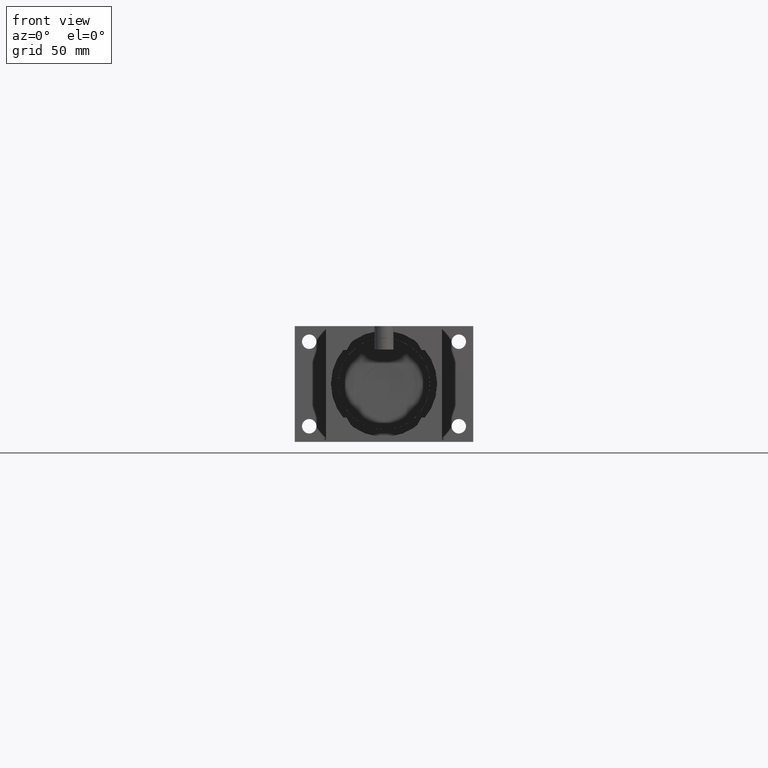
[diagram: clean part render]
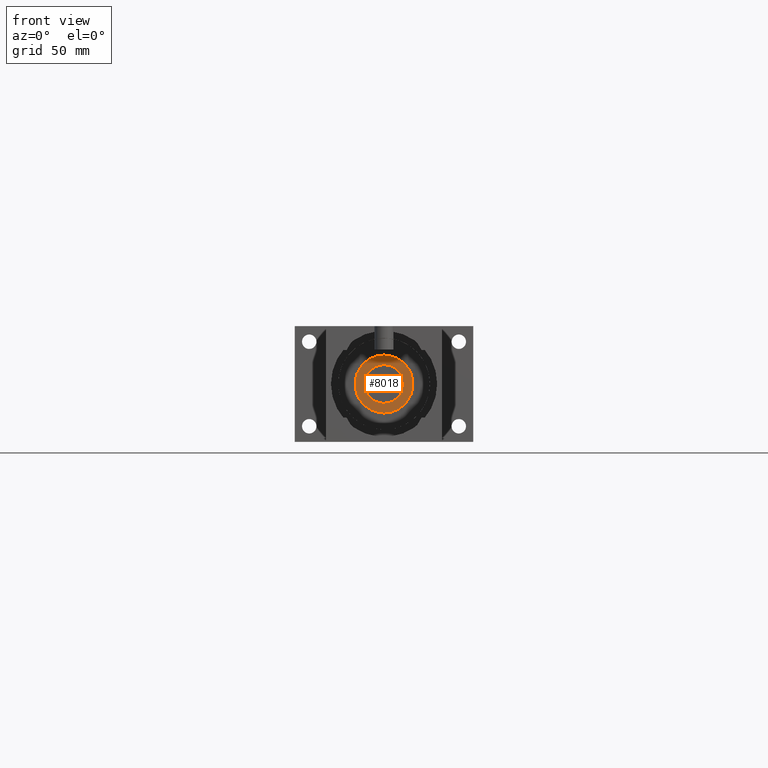
[diagram: same view with one face highlighted and labeled with its STEP entity id]
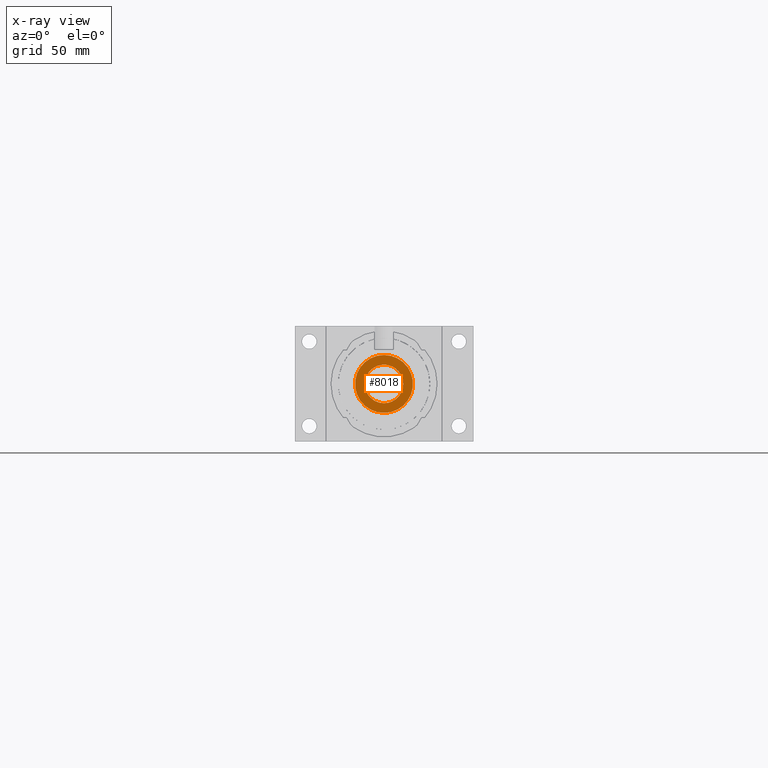
[diagram: x-ray of the same camera — body ghosted, the highlighted face saturated]
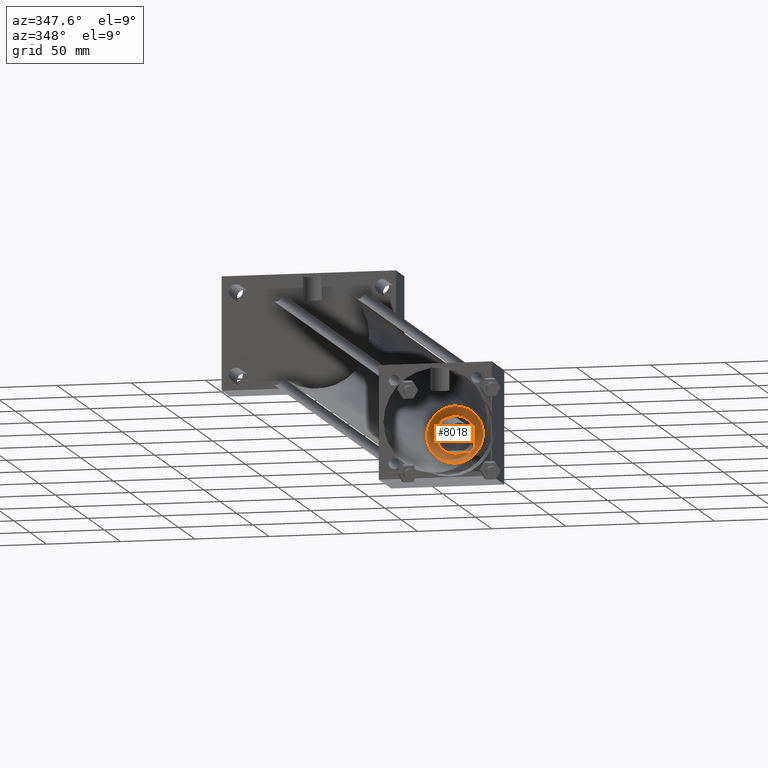
[diagram: same view with one face highlighted and labeled with its STEP entity id]
A machine part, front view. The second image highlights one B-rep face of the part: STEP entity #8018.
The next image is the same camera in x-ray: the body ghosted, the highlighted face saturated — about 0% of this face is hidden behind the body in this view.
A second angle (auxiliary view) of the same face is appended — the face is thin or edge-on in the first view.
In plain terms, the highlighted planar face has unit normal (0, 1, 0).
Its self-contained STEP definition (entity closure, byte-faithful):
#131=EDGE_CURVE('',#137,#137,#132,.T.);
#132=CIRCLE('',#133,1.270000000E+001);
#133=AXIS2_PLACEMENT_3D('',#134,#135,#136);
#134=CARTESIAN_POINT('',(0.000000000E+000,1.270000000E+001,0.000000000E+000));
#135=DIRECTION('',(0.0E+000,1.0E+000,0.0E+000));
#136=DIRECTION('',(1.0E+000,0.0E+000,0.0E+000));
#137=VERTEX_POINT('',#138);
#138=CARTESIAN_POINT('',(1.270000000E+001,1.270000000E+001,0.000000000E+000));
#433=EDGE_CURVE('',#439,#439,#434,.T.);
#434=CIRCLE('',#435,1.905000000E+001);
#435=AXIS2_PLACEMENT_3D('',#436,#437,#438);
#436=CARTESIAN_POINT('',(0.000000000E+000,1.270000000E+001,0.000000000E+000));
#437=DIRECTION('',(0.0E+000,-1.0E+000,0.0E+000));
#438=DIRECTION('',(0.0E+000,0.0E+000,-1.0E+000));
#439=VERTEX_POINT('',#440);
#440=CARTESIAN_POINT('',(0.000000000E+000,1.270000000E+001,-1.905000000E+001));
#465=FACE_OUTER_BOUND('',#467,.T.);
#466=FACE_BOUND('',#468,.T.);
#467=EDGE_LOOP('',(#469));
#468=EDGE_LOOP('',(#470));
#469=ORIENTED_EDGE('',*,*,#433,.T.);
#470=ORIENTED_EDGE('',*,*,#131,.T.);
#471=PLANE('',#472);
#472=AXIS2_PLACEMENT_3D('',#473,#474,#475);
#473=CARTESIAN_POINT('',(0.000000000E+000,1.270000000E+001,0.000000000E+000));
#474=DIRECTION('',(0.0E+000,1.0E+000,0.0E+000));
#475=DIRECTION('',(0.0E+000,0.0E+000,1.0E+000));
#8018=ADVANCED_FACE('',(#465,#466),#471,.F.);